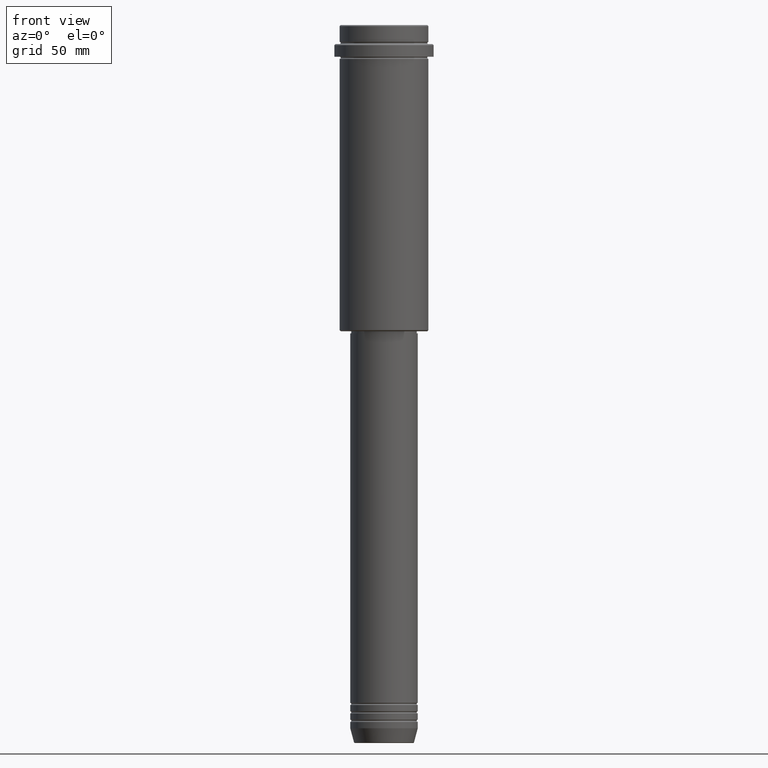
[diagram: clean part render]
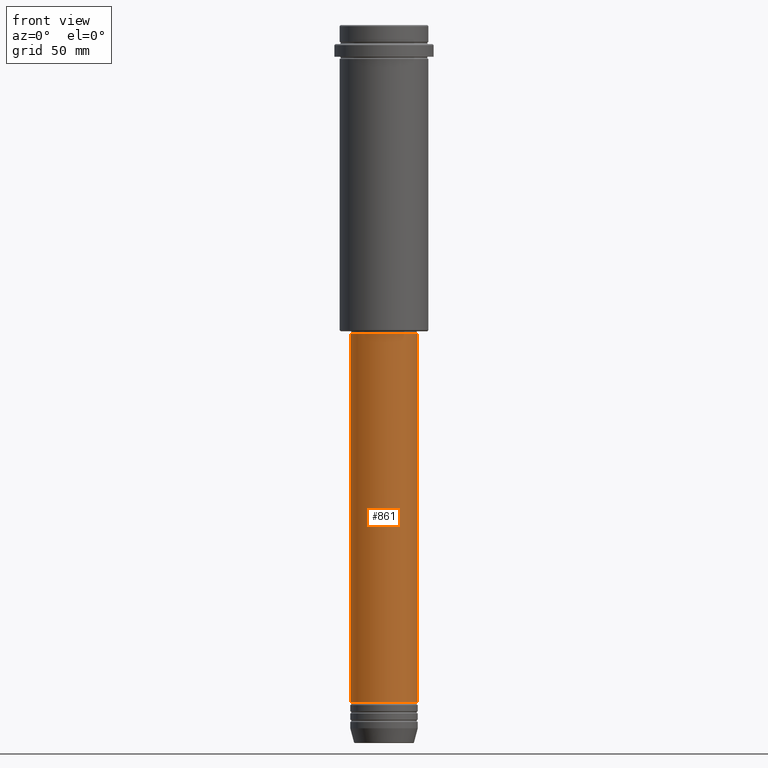
[diagram: same view with one face highlighted and labeled with its STEP entity id]
A machine part, front view. The second image highlights one B-rep face of the part: STEP entity #861.
In plain terms, the highlighted cylindrical surface (edge-blend (fillet) strip) has radius 16 mm, axis along (-0, -0, 1).
Its self-contained STEP definition (entity closure, byte-faithful):
#5 = EDGE_LOOP ( 'NONE', ( #369, #476, #343, #39 ) ) ;
#33 = CYLINDRICAL_SURFACE ( 'NONE', #980, 16.00000000000000000 ) ;
#36 = CIRCLE ( 'NONE', #1227, 16.00000000000000000 ) ;
#39 = ORIENTED_EDGE ( 'NONE', *, *, #199, .F. ) ;
#53 = CARTESIAN_POINT ( 'NONE',  ( 0.000000000000000000, 0.000000000000000000, 0.000000000000000000 ) ) ;
#146 = DIRECTION ( 'NONE',  ( -0.000000000000000000, -0.000000000000000000, 1.000000000000000000 ) ) ;
#165 = DIRECTION ( 'NONE',  ( -0.000000000000000000, -0.000000000000000000, 1.000000000000000000 ) ) ;
#168 = VECTOR ( 'NONE', #325, 1000.000000000000000 ) ;
#178 = LINE ( 'NONE', #618, #168 ) ;
#199 = EDGE_CURVE ( 'NONE', #1238, #1039, #976, .T. ) ;
#226 = CARTESIAN_POINT ( 'NONE',  ( 16.00000000000000000, 0.000000000000000000, 0.000000000000000000 ) ) ;
#263 = DIRECTION ( 'NONE',  ( 1.000000000000000000, 0.000000000000000000, 0.000000000000000000 ) ) ;
#312 = DIRECTION ( 'NONE',  ( 1.000000000000000000, 0.000000000000000000, 0.000000000000000000 ) ) ;
#325 = DIRECTION ( 'NONE',  ( -0.000000000000000000, -0.000000000000000000, 1.000000000000000000 ) ) ;
#343 = ORIENTED_EDGE ( 'NONE', *, *, #767, .T. ) ;
#369 = ORIENTED_EDGE ( 'NONE', *, *, #1324, .F. ) ;
#427 = CARTESIAN_POINT ( 'NONE',  ( 0.000000000000000000, 0.000000000000000000, -145.9999999999999432 ) ) ;
#474 = LINE ( 'NONE', #226, #733 ) ;
#473 = DIRECTION ( 'NONE',  ( 1.000000000000000000, 0.000000000000000000, 0.000000000000000000 ) ) ;
#476 = ORIENTED_EDGE ( 'NONE', *, *, #1284, .T. ) ;
#489 = DIRECTION ( 'NONE',  ( -0.000000000000000000, -0.000000000000000000, 1.000000000000000000 ) ) ;
#551 = CARTESIAN_POINT ( 'NONE',  ( -16.00000000000000000, 1.959434878635765131E-15, -320.9999999999998863 ) ) ;
#575 = CARTESIAN_POINT ( 'NONE',  ( 16.00000000000000000, 0.000000000000000000, -320.9999999999998863 ) ) ;
#596 = VERTEX_POINT ( 'NONE', #551 ) ;
#618 = CARTESIAN_POINT ( 'NONE',  ( -16.00000000000000000, 1.959434878635765131E-15, 0.000000000000000000 ) ) ;
#695 = CARTESIAN_POINT ( 'NONE',  ( 0.000000000000000000, 0.000000000000000000, -320.9999999999998863 ) ) ;
#730 = AXIS2_PLACEMENT_3D ( 'NONE', #427, #1171, #312 ) ;
#733 = VECTOR ( 'NONE', #489, 1000.000000000000000 ) ;
#767 = EDGE_CURVE ( 'NONE', #1063, #1039, #474, .T. ) ;
#861 = ADVANCED_FACE ( 'NONE', ( #1230 ), #33, .T. ) ;
#925 = CARTESIAN_POINT ( 'NONE',  ( -16.00000000000000355, 1.959434878635765526E-15, -145.9999999999999432 ) ) ;
#976 = CIRCLE ( 'NONE', #730, 16.00000000000000355 ) ;
#980 = AXIS2_PLACEMENT_3D ( 'NONE', #53, #165, #263 ) ;
#1039 = VERTEX_POINT ( 'NONE', #1074 ) ;
#1063 = VERTEX_POINT ( 'NONE', #575 ) ;
#1074 = CARTESIAN_POINT ( 'NONE',  ( 16.00000000000000355, 0.000000000000000000, -145.9999999999999432 ) ) ;
#1171 = DIRECTION ( 'NONE',  ( -0.000000000000000000, -0.000000000000000000, 1.000000000000000000 ) ) ;
#1227 = AXIS2_PLACEMENT_3D ( 'NONE', #695, #146, #473 ) ;
#1230 = FACE_OUTER_BOUND ( 'NONE', #5, .T. ) ;
#1238 = VERTEX_POINT ( 'NONE', #925 ) ;
#1284 = EDGE_CURVE ( 'NONE', #596, #1063, #36, .T. ) ;
#1324 = EDGE_CURVE ( 'NONE', #596, #1238, #178, .T. ) ;